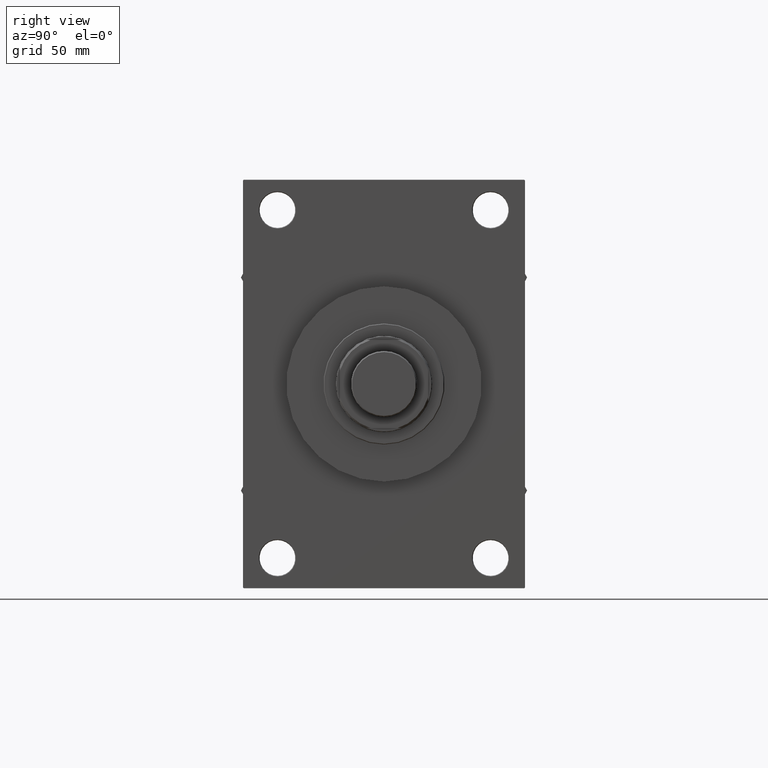
[diagram: clean part render]
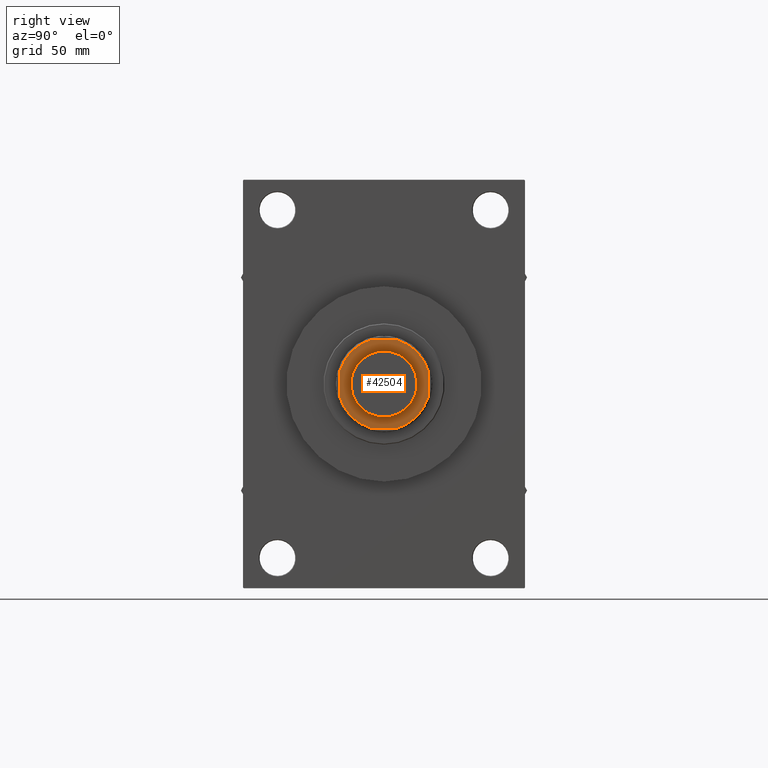
[diagram: same view with one face highlighted and labeled with its STEP entity id]
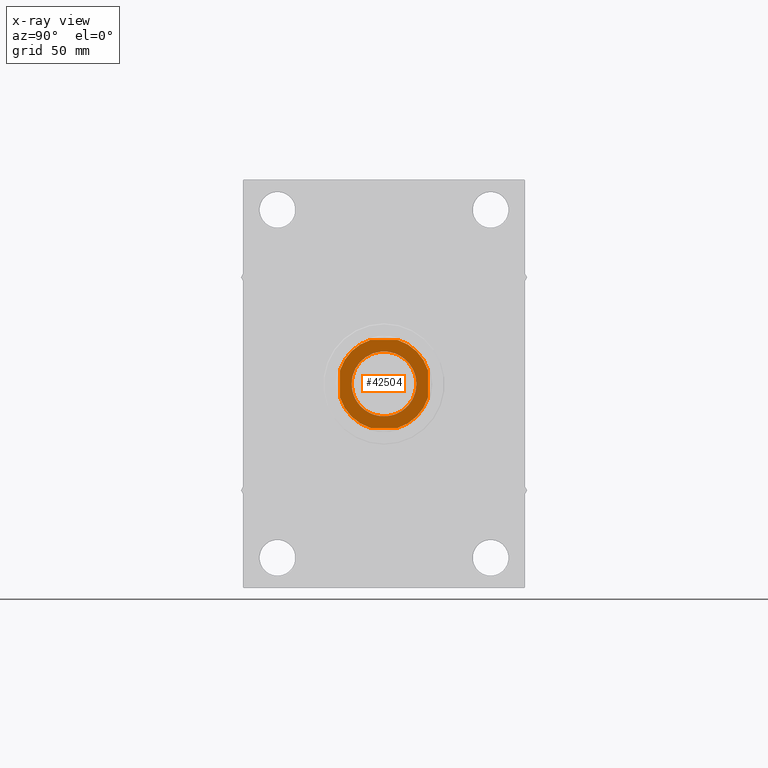
[diagram: x-ray of the same camera — body ghosted, the highlighted face saturated]
A machine part, right view. The second image highlights one B-rep face of the part: STEP entity #42504.
The next image is the same camera in x-ray: the body ghosted, the highlighted face saturated — about 0% of this face is hidden behind the body in this view.
In plain terms, the highlighted planar face has unit normal (1, 0, 0).
Its self-contained STEP definition (entity closure, byte-faithful):
#1313 = VERTEX_POINT ( 'NONE', #43942 ) ;
#1380 = DIRECTION ( 'NONE',  ( 1.000000000000000000, 0.000000000000000000, 0.000000000000000000 ) ) ;
#2901 = ORIENTED_EDGE ( 'NONE', *, *, #19614, .T. ) ;
#3856 = CIRCLE ( 'NONE', #45839, 33.50000000000006395 ) ;
#4792 = CARTESIAN_POINT ( 'NONE',  ( -9.912113800799374985, 32.00000000000000000, 234.9999999999999716 ) ) ;
#5147 = EDGE_CURVE ( 'NONE', #40497, #5652, #3856, .T. ) ;
#5196 = DIRECTION ( 'NONE',  ( -0.000000000000000000, 0.000000000000000000, 1.000000000000000000 ) ) ;
#5260 = VERTEX_POINT ( 'NONE', #43242 ) ;
#5413 = ORIENTED_EDGE ( 'NONE', *, *, #33733, .T. ) ;
#5652 = VERTEX_POINT ( 'NONE', #14444 ) ;
#5881 = AXIS2_PLACEMENT_3D ( 'NONE', #42412, #22962, #37812 ) ;
#5891 = DIRECTION ( 'NONE',  ( 1.000000000000000000, 0.000000000000000000, 0.000000000000000000 ) ) ;
#6814 = ORIENTED_EDGE ( 'NONE', *, *, #40414, .T. ) ;
#6849 = DIRECTION ( 'NONE',  ( 1.084202172485504434E-16, -1.000000000000000000, 0.000000000000000000 ) ) ;
#7356 = AXIS2_PLACEMENT_3D ( 'NONE', #21077, #32527, #39329 ) ;
#8346 = LINE ( 'NONE', #23199, #13330 ) ;
#8442 = DIRECTION ( 'NONE',  ( -0.000000000000000000, 0.000000000000000000, 1.000000000000000000 ) ) ;
#9207 = CARTESIAN_POINT ( 'NONE',  ( 0.000000000000000000, 0.000000000000000000, 234.9999999999999716 ) ) ;
#10676 = DIRECTION ( 'NONE',  ( -0.000000000000000000, 0.000000000000000000, 1.000000000000000000 ) ) ;
#10877 = VERTEX_POINT ( 'NONE', #16100 ) ;
#11126 = ORIENTED_EDGE ( 'NONE', *, *, #11240, .T. ) ;
#11191 = VECTOR ( 'NONE', #6849, 1000.000000000000000 ) ;
#11240 = EDGE_CURVE ( 'NONE', #42528, #10877, #41243, .T. ) ;
#11264 = ORIENTED_EDGE ( 'NONE', *, *, #5147, .T. ) ;
#12350 = CARTESIAN_POINT ( 'NONE',  ( 32.00000000000000000, 9.912113800799662755, 234.9999999999999716 ) ) ;
#13330 = VECTOR ( 'NONE', #27124, 1000.000000000000000 ) ;
#13451 = DIRECTION ( 'NONE',  ( 1.000000000000000000, 0.000000000000000000, 0.000000000000000000 ) ) ;
#13573 = CIRCLE ( 'NONE', #7356, 33.50000000000004263 ) ;
#14059 = CARTESIAN_POINT ( 'NONE',  ( 9.912113800799724928, -32.00000000000000000, 234.9999999999999716 ) ) ;
#14326 = CARTESIAN_POINT ( 'NONE',  ( 0.000000000000000000, 0.000000000000000000, 234.9999999999999716 ) ) ;
#14444 = CARTESIAN_POINT ( 'NONE',  ( 32.00000000000000000, -9.912113800799724928, 234.9999999999999716 ) ) ;
#14624 = CARTESIAN_POINT ( 'NONE',  ( -32.00000000000000711, 32.00000000000000000, 234.9999999999999716 ) ) ;
#15383 = VERTEX_POINT ( 'NONE', #32452 ) ;
#16100 = CARTESIAN_POINT ( 'NONE',  ( -32.00000000000000711, 9.912113800799367880, 234.9999999999999716 ) ) ;
#17925 = AXIS2_PLACEMENT_3D ( 'NONE', #9207, #46461, #43035 ) ;
#18107 = DIRECTION ( 'NONE',  ( -1.000000000000000000, -0.000000000000000000, -0.000000000000000000 ) ) ;
#18312 = VERTEX_POINT ( 'NONE', #38687 ) ;
#19004 = AXIS2_PLACEMENT_3D ( 'NONE', #42078, #23582, #23827 ) ;
#19240 = AXIS2_PLACEMENT_3D ( 'NONE', #45846, #5196, #13451 ) ;
#19614 = EDGE_CURVE ( 'NONE', #10877, #18312, #32904, .T. ) ;
#19771 = CIRCLE ( 'NONE', #19004, 23.54999999999998650 ) ;
#21077 = CARTESIAN_POINT ( 'NONE',  ( 0.000000000000000000, 0.000000000000000000, 234.9999999999999716 ) ) ;
#22214 = ORIENTED_EDGE ( 'NONE', *, *, #30380, .T. ) ;
#22962 = DIRECTION ( 'NONE',  ( 0.000000000000000000, -0.000000000000000000, -1.000000000000000000 ) ) ;
#23199 = CARTESIAN_POINT ( 'NONE',  ( 31.99999999999999289, 32.00000000000000000, 234.9999999999999716 ) ) ;
#23315 = CARTESIAN_POINT ( 'NONE',  ( -23.54999999999998650, 2.884043211992015027E-15, 234.9999999999999716 ) ) ;
#23582 = DIRECTION ( 'NONE',  ( 0.000000000000000000, -0.000000000000000000, -1.000000000000000000 ) ) ;
#23827 = DIRECTION ( 'NONE',  ( 1.000000000000000000, 0.000000000000000000, 0.000000000000000000 ) ) ;
#24939 = LINE ( 'NONE', #39774, #25758 ) ;
#25758 = VECTOR ( 'NONE', #18107, 1000.000000000000000 ) ;
#26133 = CIRCLE ( 'NONE', #5881, 23.54999999999998650 ) ;
#26169 = VERTEX_POINT ( 'NONE', #23315 ) ;
#27124 = DIRECTION ( 'NONE',  ( -1.084202172485504434E-16, 1.000000000000000000, -0.000000000000000000 ) ) ;
#27547 = ORIENTED_EDGE ( 'NONE', *, *, #30594, .T. ) ;
#27939 = FACE_OUTER_BOUND ( 'NONE', #32155, .T. ) ;
#29019 = VERTEX_POINT ( 'NONE', #12350 ) ;
#30380 = EDGE_CURVE ( 'NONE', #1313, #42528, #24939, .T. ) ;
#30594 = EDGE_CURVE ( 'NONE', #5652, #29019, #8346, .T. ) ;
#31719 = CARTESIAN_POINT ( 'NONE',  ( -32.00000000000000000, -32.00000000000000000, 234.9999999999999716 ) ) ;
#32155 = EDGE_LOOP ( 'NONE', ( #27547, #34768, #22214, #11126, #2901, #44177, #5413, #11264 ) ) ;
#32452 = CARTESIAN_POINT ( 'NONE',  ( 23.54999999999998650, 0.000000000000000000, 234.9999999999999716 ) ) ;
#32527 = DIRECTION ( 'NONE',  ( -0.000000000000000000, 0.000000000000000000, 1.000000000000000000 ) ) ;
#32904 = LINE ( 'NONE', #14624, #11191 ) ;
#33733 = EDGE_CURVE ( 'NONE', #5260, #40497, #46319, .T. ) ;
#34609 = AXIS2_PLACEMENT_3D ( 'NONE', #38381, #8442, #1380 ) ;
#34768 = ORIENTED_EDGE ( 'NONE', *, *, #41676, .T. ) ;
#35783 = ORIENTED_EDGE ( 'NONE', *, *, #44345, .T. ) ;
#37812 = DIRECTION ( 'NONE',  ( 1.000000000000000000, 0.000000000000000000, 0.000000000000000000 ) ) ;
#38381 = CARTESIAN_POINT ( 'NONE',  ( 0.000000000000000000, 0.000000000000000000, 234.9999999999999716 ) ) ;
#38687 = CARTESIAN_POINT ( 'NONE',  ( -32.00000000000000000, -9.912113800799378538, 234.9999999999999716 ) ) ;
#38954 = EDGE_LOOP ( 'NONE', ( #35783, #6814 ) ) ;
#39329 = DIRECTION ( 'NONE',  ( 1.000000000000000000, 0.000000000000000000, 0.000000000000000000 ) ) ;
#39774 = CARTESIAN_POINT ( 'NONE',  ( -32.00000000000000711, 32.00000000000000000, 234.9999999999999716 ) ) ;
#40414 = EDGE_CURVE ( 'NONE', #26169, #15383, #19771, .T. ) ;
#40497 = VERTEX_POINT ( 'NONE', #14059 ) ;
#41243 = CIRCLE ( 'NONE', #17925, 33.49999999999995737 ) ;
#41676 = EDGE_CURVE ( 'NONE', #29019, #1313, #13573, .T. ) ;
#42078 = CARTESIAN_POINT ( 'NONE',  ( 0.000000000000000000, 0.000000000000000000, 234.9999999999999716 ) ) ;
#42412 = CARTESIAN_POINT ( 'NONE',  ( 0.000000000000000000, 0.000000000000000000, 234.9999999999999716 ) ) ;
#42504 = ADVANCED_FACE ( 'NONE', ( #46648, #27939 ), #45688, .T. ) ;
#42528 = VERTEX_POINT ( 'NONE', #4792 ) ;
#43035 = DIRECTION ( 'NONE',  ( 1.000000000000000000, 0.000000000000000000, 0.000000000000000000 ) ) ;
#43242 = CARTESIAN_POINT ( 'NONE',  ( -9.912113800799374985, -32.00000000000000000, 234.9999999999999716 ) ) ;
#43313 = CIRCLE ( 'NONE', #19240, 33.49999999999995737 ) ;
#43770 = VECTOR ( 'NONE', #5891, 1000.000000000000000 ) ;
#43942 = CARTESIAN_POINT ( 'NONE',  ( 9.912113800799655650, 32.00000000000000000, 234.9999999999999716 ) ) ;
#44177 = ORIENTED_EDGE ( 'NONE', *, *, #47616, .T. ) ;
#44345 = EDGE_CURVE ( 'NONE', #15383, #26169, #26133, .T. ) ;
#45688 = PLANE ( 'NONE',  #34609 ) ;
#45839 = AXIS2_PLACEMENT_3D ( 'NONE', #14326, #10676, #48152 ) ;
#45846 = CARTESIAN_POINT ( 'NONE',  ( 0.000000000000000000, 0.000000000000000000, 234.9999999999999716 ) ) ;
#46319 = LINE ( 'NONE', #31719, #43770 ) ;
#46461 = DIRECTION ( 'NONE',  ( -0.000000000000000000, 0.000000000000000000, 1.000000000000000000 ) ) ;
#46648 = FACE_BOUND ( 'NONE', #38954, .T. ) ;
#47616 = EDGE_CURVE ( 'NONE', #18312, #5260, #43313, .T. ) ;
#48152 = DIRECTION ( 'NONE',  ( 1.000000000000000000, 0.000000000000000000, 0.000000000000000000 ) ) ;